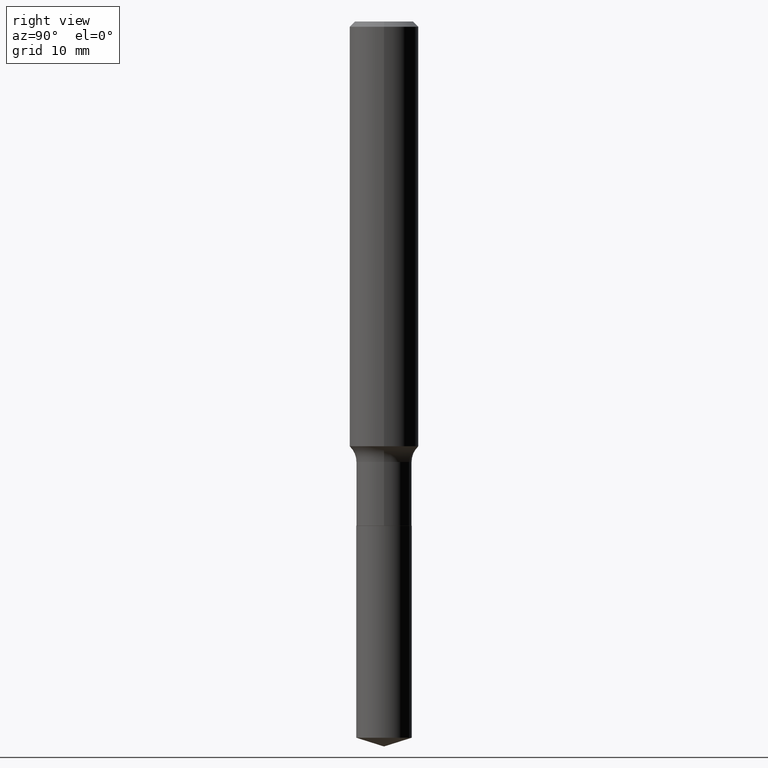
[diagram: clean part render]
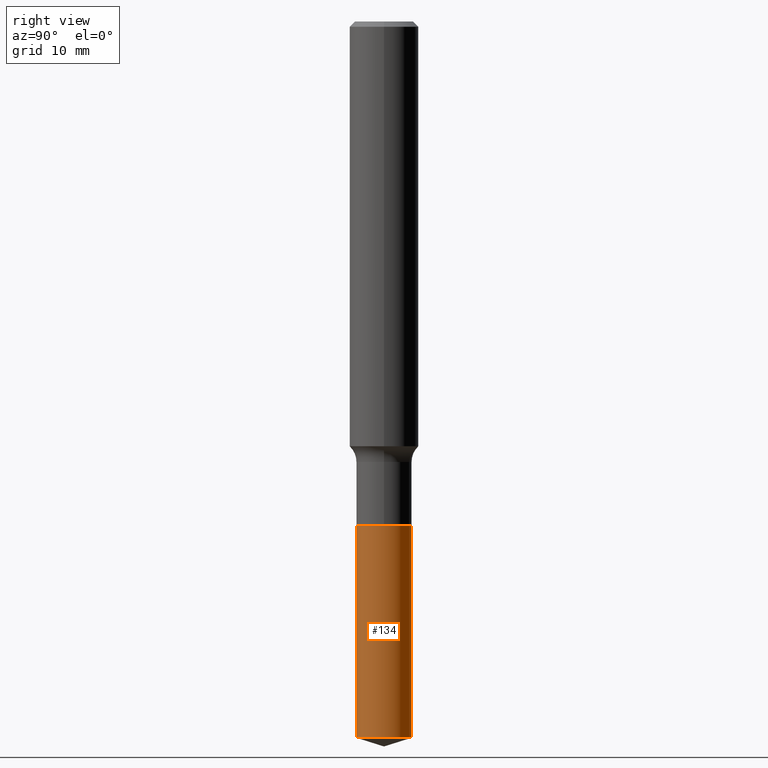
[diagram: same view with one face highlighted and labeled with its STEP entity id]
A machine part, right view. The second image highlights one B-rep face of the part: STEP entity #134.
In plain terms, the highlighted cylindrical surface (edge-blend (fillet) strip) has radius 2.5527 mm, axis along (-0, 0, 1).
Its self-contained STEP definition (entity closure, byte-faithful):
#18 = CARTESIAN_POINT ( 'NONE',  ( 7.140954494389642327E-16, 0.1004999999999936361, -1.826000000000000512 ) ) ;
#61 = FACE_OUTER_BOUND ( 'NONE', #341, .T. ) ;
#81 = DIRECTION ( 'NONE',  ( -2.445401132426348956E-29, 3.491578251517480594E-15, 1.000000000000000000 ) ) ;
#91 = AXIS2_PLACEMENT_3D ( 'NONE', #130, #277, #432 ) ;
#92 = CIRCLE ( 'NONE', #230, 0.1005000000000000060 ) ;
#130 = CARTESIAN_POINT ( 'NONE',  ( 4.465426040094059556E-29, -6.375444924727584257E-15, -1.826000000000000068 ) ) ;
#134 = ADVANCED_FACE ( 'NONE', ( #61 ), #474, .T. ) ;
#137 = CIRCLE ( 'NONE', #430, 0.1005000000000000060 ) ;
#161 = ORIENTED_EDGE ( 'NONE', *, *, #203, .F. ) ;
#163 = DIRECTION ( 'NONE',  ( -6.982962677686265922E-15, -1.000000000000000000, 2.718256710113694497E-15 ) ) ;
#202 = VERTEX_POINT ( 'NONE', #18 ) ;
#203 = EDGE_CURVE ( 'NONE', #492, #297, #484, .T. ) ;
#230 = AXIS2_PLACEMENT_3D ( 'NONE', #259, #81, #267 ) ;
#232 = CARTESIAN_POINT ( 'NONE',  ( -7.017877491074251076E-16, -0.1005000000000063759, -1.825999999999999845 ) ) ;
#254 = EDGE_CURVE ( 'NONE', #458, #202, #374, .T. ) ;
#256 = ORIENTED_EDGE ( 'NONE', *, *, #254, .T. ) ;
#259 = CARTESIAN_POINT ( 'NONE',  ( 6.341812827357289971E-29, -9.054576463095092159E-15, -2.593312471717661882 ) ) ;
#267 = DIRECTION ( 'NONE',  ( -6.982962677686265922E-15, -1.000000000000000000, 5.436513420227388995E-15 ) ) ;
#273 = CARTESIAN_POINT ( 'NONE',  ( -7.017877491074060763E-16, -0.1005000000000090266, -2.593312471717660994 ) ) ;
#277 = DIRECTION ( 'NONE',  ( -2.445401132426348956E-29, 3.491578251517480594E-15, 1.000000000000000000 ) ) ;
#287 = CARTESIAN_POINT ( 'NONE',  ( -7.017877491074251076E-16, -0.1005000000000063759, -1.825999999999999845 ) ) ;
#297 = VERTEX_POINT ( 'NONE', #232 ) ;
#341 = EDGE_LOOP ( 'NONE', ( #349, #256, #418, #161 ) ) ;
#343 = VECTOR ( 'NONE', #444, 39.37007874015748143 ) ;
#348 = EDGE_CURVE ( 'NONE', #492, #458, #92, .T. ) ;
#349 = ORIENTED_EDGE ( 'NONE', *, *, #348, .T. ) ;
#374 = LINE ( 'NONE', #410, #440 ) ;
#384 = DIRECTION ( 'NONE',  ( -2.445401132426348956E-29, 3.491578251517480594E-15, 1.000000000000000000 ) ) ;
#386 = DIRECTION ( 'NONE',  ( -2.445401132426348956E-29, 3.491578251517480594E-15, 1.000000000000000000 ) ) ;
#388 = CARTESIAN_POINT ( 'NONE',  ( 7.140954494389638383E-16, 0.1004999999999909299, -2.593312471717662326 ) ) ;
#410 = CARTESIAN_POINT ( 'NONE',  ( 7.140954494389453000E-16, 0.1004999999999936361, -1.826000000000000512 ) ) ;
#413 = EDGE_CURVE ( 'NONE', #297, #202, #137, .T. ) ;
#418 = ORIENTED_EDGE ( 'NONE', *, *, #413, .F. ) ;
#424 = CARTESIAN_POINT ( 'NONE',  ( 4.465426040094059556E-29, -6.375444924727584257E-15, -1.826000000000000068 ) ) ;
#430 = AXIS2_PLACEMENT_3D ( 'NONE', #424, #386, #163 ) ;
#432 = DIRECTION ( 'NONE',  ( -6.982962677686265922E-15, -1.000000000000000000, 2.718256710113694497E-15 ) ) ;
#440 = VECTOR ( 'NONE', #384, 39.37007874015748143 ) ;
#444 = DIRECTION ( 'NONE',  ( -2.445401132426348956E-29, 3.491578251517480594E-15, 1.000000000000000000 ) ) ;
#458 = VERTEX_POINT ( 'NONE', #388 ) ;
#474 = CYLINDRICAL_SURFACE ( 'NONE', #91, 0.1005000000000000060 ) ;
#484 = LINE ( 'NONE', #287, #343 ) ;
#492 = VERTEX_POINT ( 'NONE', #273 ) ;